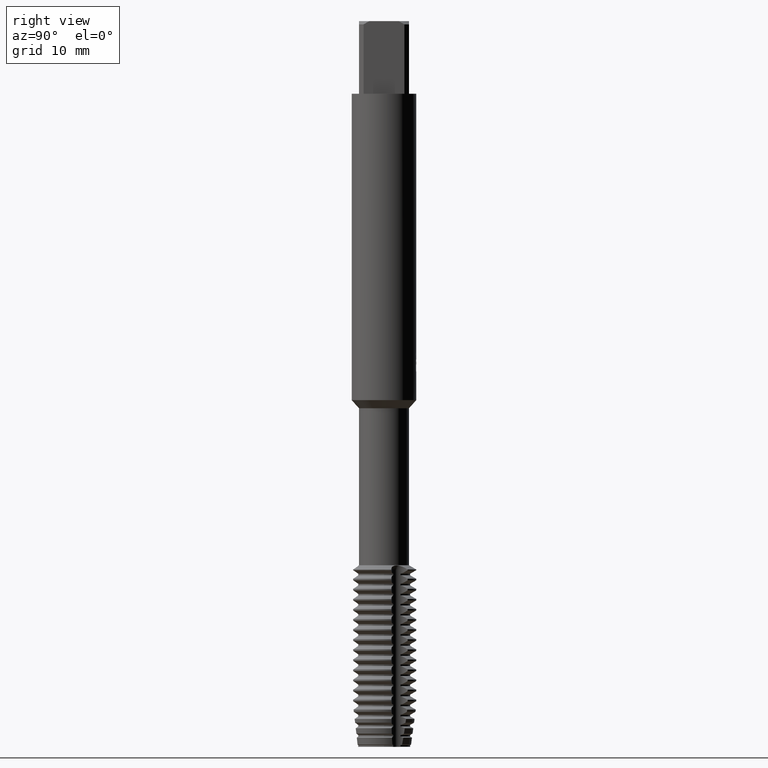
[diagram: clean part render]
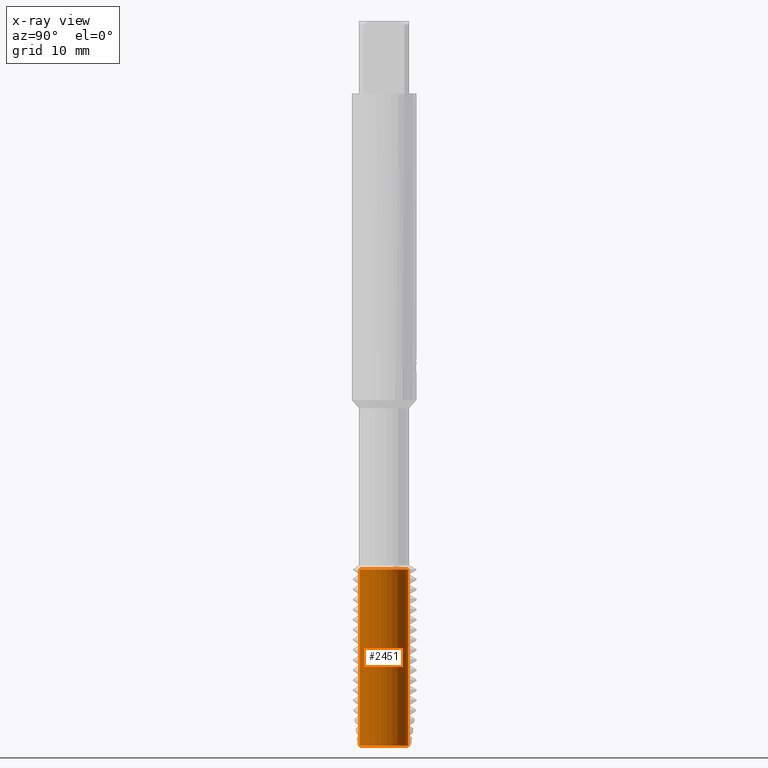
[diagram: x-ray — body ghosted, one internal face saturated and labeled with its STEP entity id]
A machine part, right view, then the same camera in x-ray: the body is ghosted and one INTERNAL B-rep face — a face not visible from any outside direction — is saturated and labeled: STEP entity #2451.
In plain terms, the highlighted cylindrical surface (edge-blend (fillet) strip) has radius 2.9911 mm, axis along (-0, -0, 1).
Its self-contained STEP definition (entity closure, byte-faithful):
#2355=EDGE_CURVE('',#4509,#2697,#6830,.T.);
#2451=ADVANCED_FACE('',(#6941),#6942,.T.);
#2697=VERTEX_POINT('',#7211);
#3271=EDGE_CURVE('',#2697,#4451,#7843,.T.);
#3633=EDGE_CURVE('',#6013,#4509,#8235,.T.);
#4451=VERTEX_POINT('',#9124);
#4509=VERTEX_POINT('',#9188);
#5489=EDGE_CURVE('',#6013,#4451,#10259,.T.);
#6013=VERTEX_POINT('',#10825);
#6830=CIRCLE('',#11794,2.99107589);
#6941=FACE_OUTER_BOUND('',#12001,.T.);
#6942=CYLINDRICAL_SURFACE('',#12002,2.99107589);
#7211=CARTESIAN_POINT('',(3.66289053965892E-016,-2.99107589,-89.855779694365));
#7843=LINE('',#13596,#13597);
#8235=LINE('',#14234,#14235);
#9124=CARTESIAN_POINT('',(3.66289053965892E-016,-2.99107589,-68.0));
#9188=CARTESIAN_POINT('',(0.0,2.99107589,-89.855779694365));
#10259=CIRCLE('',#17835,2.99107589);
#10825=CARTESIAN_POINT('',(0.0,2.99107589,-68.0));
#11794=AXIS2_PLACEMENT_3D('',#20243,#20244,#20245);
#12001=EDGE_LOOP('',(#20411,#20412,#20413,#20414));
#12002=AXIS2_PLACEMENT_3D('',#20415,#20416,#20417);
#13596=CARTESIAN_POINT('',(3.66289053965892E-016,-2.99107589,-78.9278898471825));
#13597=VECTOR('',#21566,1.0);
#14234=CARTESIAN_POINT('',(-3.66289053965892E-016,2.99107589,-78.9278898471825));
#14235=VECTOR('',#21965,1.0);
#17835=AXIS2_PLACEMENT_3D('',#24199,#24200,#24201);
#20243=CARTESIAN_POINT('',(0.0,0.0,-89.855779694365));
#20244=DIRECTION('',(0.0,0.0,-1.0));
#20245=DIRECTION('',(0.0,1.0,0.0));
#20411=ORIENTED_EDGE('',*,*,#3633,.F.);
#20412=ORIENTED_EDGE('',*,*,#5489,.T.);
#20413=ORIENTED_EDGE('',*,*,#3271,.F.);
#20414=ORIENTED_EDGE('',*,*,#2355,.F.);
#20415=CARTESIAN_POINT('',(0.0,0.0,-78.9278898471825));
#20416=DIRECTION('',(-0.0,-0.0,1.0));
#20417=DIRECTION('',(0.0,1.0,0.0));
#21566=DIRECTION('',(-0.0,-0.0,1.0));
#21965=DIRECTION('',(0.0,0.0,-1.0));
#24199=CARTESIAN_POINT('',(0.0,0.0,-68.0));
#24200=DIRECTION('',(0.0,0.0,-1.0));
#24201=DIRECTION('',(0.0,1.0,0.0));